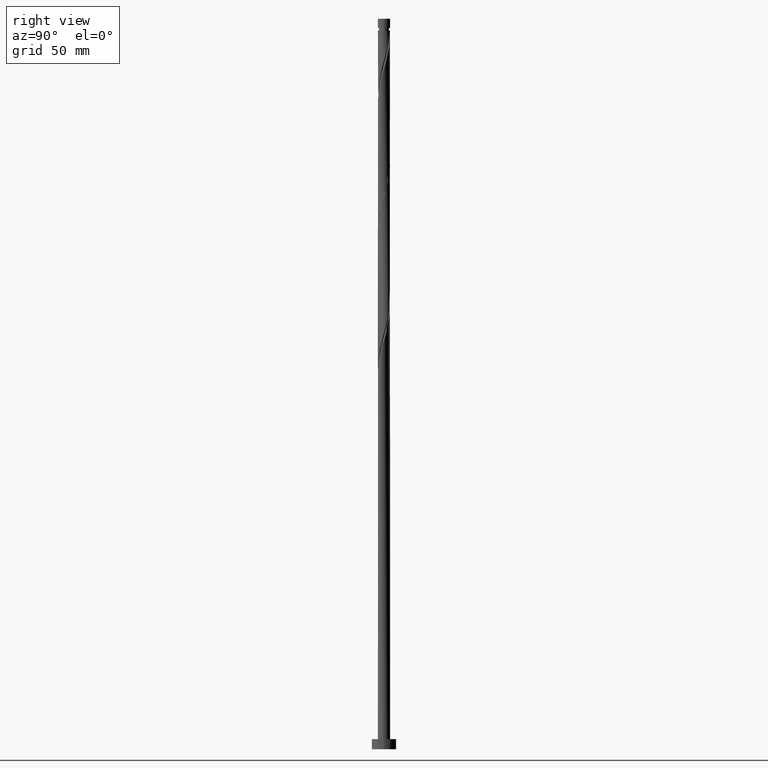
[diagram: clean part render]
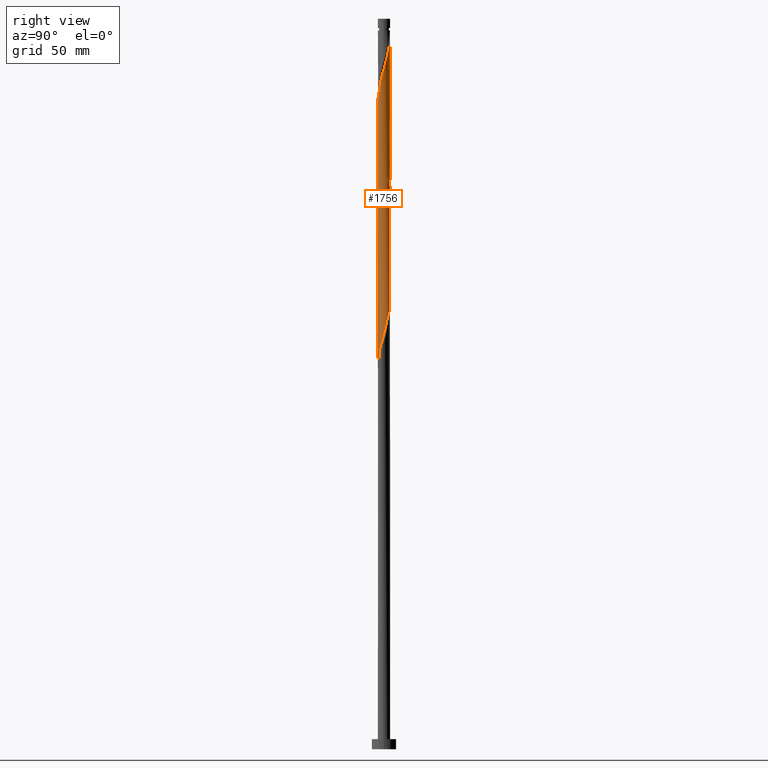
[diagram: same view with one face highlighted and labeled with its STEP entity id]
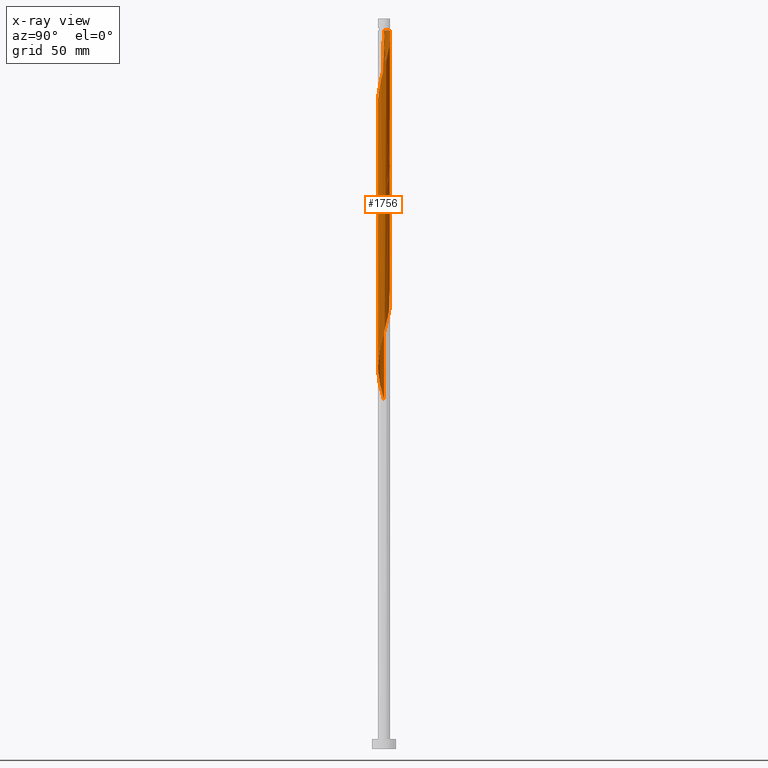
[diagram: x-ray of the same camera — body ghosted, the highlighted face saturated]
A machine part, right view. The second image highlights one B-rep face of the part: STEP entity #1756.
The next image is the same camera in x-ray: the body ghosted, the highlighted face saturated — about 0% of this face is hidden behind the body in this view.
In plain terms, the highlighted cylindrical surface (bore or boss wall) has radius 3 mm, axis along (-0, -0, -1).
Its self-contained STEP definition (entity closure, byte-faithful):
#3 =( BOUNDED_CURVE ( )  B_SPLINE_CURVE ( 2, ( #1465, #1043, #151, #741, #900, #1616, #1327, #924, #1803, #340, #1792, #1658, #474, #934, #1510, #624, #1065, #776, #1638, #1501, #1218, #487, #757, #1341, #764, #889, #1770, #1173, #922, #7, #1747, #611, #1463, #1891, #452, #139, #1196, #583, #441, #158, #29, #1334, #751, #1485, #318, #729, #472, #1041, #1032, #461, #739, #1614, #329, #288, #1051, #1602, #622, #1499, #308, #149, #878, #1451, #1325, #596, #170, #1780, #1206, #1184, #1624, #1757, #1315, #1063, #908, #17, #1636, #183, #1660, #43, #928, #1518, #206, #350, #188, #1525, #214, #789, #491, #1212, #1786, #780, #636, #479, #799 ),
 .UNSPECIFIED., .F., .T. ) 
 B_SPLINE_CURVE_WITH_KNOTS ( ( 3, 2, 2, 2, 2, 2, 2, 2, 2, 2, 2, 2, 2, 2, 2, 2, 2, 2, 2, 2, 2, 2, 2, 2, 2, 2, 2, 2, 2, 2, 2, 2, 2, 2, 2, 2, 2, 2, 2, 2, 2, 2, 2, 2, 2, 2, 3 ),
 ( 0.5545286012773112949, 0.5583333333333333481, 0.5666666666666666519, 0.5749999999999999556, 0.5833333333333333703, 0.5916666666666666741, 0.5999999999999999778, 0.6083333333333332815, 0.6166666666666666963, 0.6250000000000000000, 0.6333333333333333037, 0.6416666666666667185, 0.6500000000000000222, 0.6583333333333333259, 0.6666666666666666297, 0.6750000000000000444, 0.6833333333333333481, 0.6916666666666666519, 0.6999999999999999556, 0.7083333333333333703, 0.7166666666666666741, 0.7249999999999999778, 0.7333333333333332815, 0.7416666666666666963, 0.7500000000000000000, 0.7583333333333333037, 0.7666666666666667185, 0.7750000000000000222, 0.7833333333333333259, 0.7916666666666666297, 0.8000000000000000444, 0.8083333333333333481, 0.8166666666666666519, 0.8249999999999999556, 0.8333333333333333703, 0.8416666666666666741, 0.8499999999999999778, 0.8583333333333332815, 0.8666666666666666963, 0.8750000000000000000, 0.8833333333333333037, 0.8916666666666667185, 0.8999999999999999112, 0.9083333333333332149, 0.9166666666666665186, 0.9250000000000000444, 0.9295286012773114059 ),
 .UNSPECIFIED. ) 
 CURVE ( )  GEOMETRIC_REPRESENTATION_ITEM ( )  RATIONAL_B_SPLINE_CURVE ( ( 0.9066196499552388044, 0.9068171577856514176, 0.9090909090909504719, 0.9041108139711987457, 0.9090909090909504719, 0.9041108139711987457, 0.9090909090909504719, 0.9041108139711987457, 0.9090909090909504719, 0.9041108139711987457, 0.9090909090909504719, 0.9041108139711987457, 0.9090909090909504719, 0.9041108139711987457, 0.9090909090909504719, 0.9041108139711987457, 0.9090909090909504719, 0.9041108139711987457, 0.9090909090909504719, 0.9041108139711987457, 0.9090909090909504719, 0.9041108139711987457, 0.9090909090909504719, 0.9041108139711987457, 0.9090909090909504719, 0.9041108139711987457, 0.9090909090909504719, 0.9041108139711987457, 0.9090909090909504719, 0.9041108139711987457, 0.9090909090909504719, 0.9041108139711987457, 0.9090909090909504719, 0.9041108139711987457, 0.9090909090909504719, 0.9041108139711987457, 0.9090909090909504719, 0.9041108139711987457, 0.9090909090909504719, 0.9041108139711987457, 0.9090909090909504719, 0.9041108139711987457, 0.9090909090909504719, 0.9041108139711987457, 0.9090909090909504719, 0.9041108139711987457, 0.9090909090909504719, 0.9041108139711987457, 0.9090909090909504719, 0.9041108139711987457, 0.9090909090909504719, 0.9041108139711987457, 0.9090909090909504719, 0.9041108139711987457, 0.9090909090909504719, 0.9041108139711987457, 0.9090909090909504719, 0.9041108139711987457, 0.9090909090909504719, 0.9041108139711987457, 0.9090909090909504719, 0.9041108139711987457, 0.9090909090909504719, 0.9041108139711987457, 0.9090909090909504719, 0.9041108139711987457, 0.9090909090909504719, 0.9041108139711987457, 0.9090909090909504719, 0.9041108139711987457, 0.9090909090909504719, 0.9041108139711987457, 0.9090909090909504719, 0.9041108139711987457, 0.9090909090909504719, 0.9041108139711987457, 0.9090909090909504719, 0.9041108139711987457, 0.9090909090909504719, 0.9041108139711987457, 0.9090909090909504719, 0.9041108139711987457, 0.9090909090909504719, 0.9041108139711987457, 0.9090909090909504719, 0.9041108139711987457, 0.9090909090909504719, 0.9041108139711987457, 0.9090909090909504719, 0.9041108139711987457, 0.9090909090909504719, 0.9063845652764976890, 0.9066196499552388044 ) ) 
 REPRESENTATION_ITEM ( '' )  );
#5 = CARTESIAN_POINT ( 'NONE',  ( 2.980586974261068445, -0.3407363920471048191, 332.1849267626111555 ) ) ;
#7 = CARTESIAN_POINT ( 'NONE',  ( -2.944774136347767524, -0.6540087066196486054, 239.9627045403889269 ) ) ;
#9 = ORIENTED_EDGE ( 'NONE', *, *, #1231, .F. ) ;
#14 = CARTESIAN_POINT ( 'NONE',  ( -1.245111594254573406, -2.729413328510883474, 312.1849267626112123 ) ) ;
#17 = CARTESIAN_POINT ( 'NONE',  ( 0.9582386936374892583, -2.860279830445434879, 191.0738156515000412 ) ) ;
#29 = CARTESIAN_POINT ( 'NONE',  ( -1.785379858637177852, 2.410895841875524415, 227.7404823181666984 ) ) ;
#37 = CARTESIAN_POINT ( 'NONE',  ( 2.944774136347770188, -0.6540087066196526022, 331.0738156514998423 ) ) ;
#43 = CARTESIAN_POINT ( 'NONE',  ( -0.2879860105828873640, -3.002746436205628644, 186.6293712070556126 ) ) ;
#50 = CIRCLE ( 'NONE', #1007, 2.999999999999969802 ) ;
#78 = VECTOR ( 'NONE', #1581, 1000.000000000000000 ) ;
#87 = VERTEX_POINT ( 'NONE', #301 ) ;
#129 = VERTEX_POINT ( 'NONE', #1759 ) ;
#139 = CARTESIAN_POINT ( 'NONE',  ( -2.766788993523057627, 1.201790650553047346, 233.2960378737222698 ) ) ;
#147 = LINE ( 'NONE', #191, #238 ) ;
#149 = CARTESIAN_POINT ( 'NONE',  ( 2.944774136347767524, 0.6540087066196478283, 206.6293712070556126 ) ) ;
#151 = CARTESIAN_POINT ( 'NONE',  ( 2.986297077045550363, -0.2864083930844409931, 269.9627045403889838 ) ) ;
#156 = CARTESIAN_POINT ( 'NONE',  ( 2.424175730171095555, -1.795214230025625968, 326.6293712070556126 ) ) ;
#158 = CARTESIAN_POINT ( 'NONE',  ( -2.038775222402704479, 2.223244857174722977, 228.8515934292777843 ) ) ;
#165 = EDGE_CURVE ( 'NONE', #129, #1487, #3, .T. ) ;
#167 = CARTESIAN_POINT ( 'NONE',  ( 2.986297077045553916, 0.2864083930844371628, 334.4071489848333840 ) ) ;
#170 = CARTESIAN_POINT ( 'NONE',  ( 2.861491667719897602, -0.9010357570982442388, 201.0738156515000412 ) ) ;
#172 = EDGE_LOOP ( 'NONE', ( #9, #943, #1553, #1705, #432, #972, #1373, #693 ) ) ;
#177 = CARTESIAN_POINT ( 'NONE',  ( -2.956194341916738466, 0.6002808636434369127, 302.1849267626111555 ) ) ;
#180 = CARTESIAN_POINT ( 'NONE',  ( 2.211065689225172992, -2.027606598413812744, 325.5182600959444699 ) ) ;
#183 = CARTESIAN_POINT ( 'NONE',  ( 0.3426132633519626269, -2.997004880578669539, 188.8515934292778127 ) ) ;
#188 = CARTESIAN_POINT ( 'NONE',  ( -1.741185482790979178, -2.443004935426440927, 181.0738156515000696 ) ) ;
#191 = CARTESIAN_POINT ( 'NONE',  ( -3.000000000000000444, 0.000000000000000000, 358.0000000000000000 ) ) ;
#205 = DIRECTION ( 'NONE',  ( -1.000000000000000000, 0.000000000000000000, 0.000000000000000000 ) ) ;
#206 = CARTESIAN_POINT ( 'NONE',  ( -1.195207115623887928, -2.751632233922627790, 183.2960378737222982 ) ) ;
#214 = CARTESIAN_POINT ( 'NONE',  ( -2.211065689225170772, -2.027606598413810080, 178.8515934292778127 ) ) ;
#226 = CARTESIAN_POINT ( 'NONE',  ( 0.3426132633519643478, 2.997004880578673980, 348.8515934292776706 ) ) ;
#228 = EDGE_CURVE ( 'NONE', #87, #950, #50, .T. ) ;
#234 = CARTESIAN_POINT ( 'NONE',  ( 2.980586974261064892, 0.3407363920471029317, 272.1849267626112123 ) ) ;
#238 = VECTOR ( 'NONE', #1182, 1000.000000000000000 ) ;
#273 = CARTESIAN_POINT ( 'NONE',  ( 2.744447700168707538, 1.251970017003500191, 275.5182600959444699 ) ) ;
#277 = EDGE_CURVE ( 'NONE', #406, #129, #1188, .T. ) ;
#288 = CARTESIAN_POINT ( 'NONE',  ( 1.997955648279249319, 2.259998966801997078, 213.2960378737222413 ) ) ;
#292 = CARTESIAN_POINT ( 'NONE',  ( -1.531984494871650782, 2.598546826576327184, 293.2960378737222982 ) ) ;
#295 = DIRECTION ( 'NONE',  ( -0.000000000000000000, -0.000000000000000000, -1.000000000000000000 ) ) ;
#301 = CARTESIAN_POINT ( 'NONE',  ( -2.999999999999969802, 0.000000000000000000, 352.1849267626111555 ) ) ;
#308 = CARTESIAN_POINT ( 'NONE',  ( 2.844610918258238197, 0.9529893618115726772, 207.7404823181667837 ) ) ;
#312 = CARTESIAN_POINT ( 'NONE',  ( -1.785379858637177852, 2.410895841875524415, 294.4071489848333840 ) ) ;
#318 = CARTESIAN_POINT ( 'NONE',  ( -0.6504259784947262757, 2.928642355512051765, 223.2960378737222982 ) ) ;
#326 = CARTESIAN_POINT ( 'NONE',  ( -2.956194341916741575, -0.6002808636434369127, 302.1849267626110986 ) ) ;
#329 = CARTESIAN_POINT ( 'NONE',  ( 1.741185482790980510, 2.443004935426440483, 214.4071489848334409 ) ) ;
#336 = CARTESIAN_POINT ( 'NONE',  ( -2.456461689585823116, -1.750776419202129119, 306.6293712070555557 ) ) ;
#340 = CARTESIAN_POINT ( 'NONE',  ( 2.038775222402704035, -2.223244857174722977, 262.1849267626112123 ) ) ;
#345 = CARTESIAN_POINT ( 'NONE',  ( 2.766788993523061624, 1.201790650553045792, 337.7404823181666416 ) ) ;
#350 = CARTESIAN_POINT ( 'NONE',  ( -1.484415317302709481, -2.626010904050885220, 182.1849267626110986 ) ) ;
#359 = CYLINDRICAL_SURFACE ( 'NONE', #1607, 3.000000000000000444 ) ;
#406 = VERTEX_POINT ( 'NONE', #1171 ) ;
#414 = CARTESIAN_POINT ( 'NONE',  ( 2.584311715169901991, 1.523592123514560193, 276.6293712070556126 ) ) ;
#417 = LINE ( 'NONE', #1140, #1605 ) ;
#432 = ORIENTED_EDGE ( 'NONE', *, *, #165, .F. ) ;
#435 = CARTESIAN_POINT ( 'NONE',  ( -2.038775222402704479, 2.223244857174722977, 295.5182600959444130 ) ) ;
#441 = CARTESIAN_POINT ( 'NONE',  ( -2.247618455994262465, 1.987010638188425382, 229.9627045403889554 ) ) ;
#448 = CARTESIAN_POINT ( 'NONE',  ( -3.000000000000003553, -0.1435319978602548896, 300.5680320446537621 ) ) ;
#452 = CARTESIAN_POINT ( 'NONE',  ( -2.861491667719897602, 0.9010357570982423514, 234.4071489848334409 ) ) ;
#459 = CARTESIAN_POINT ( 'NONE',  ( 0.9582386936374930331, 2.860279830445437099, 346.6293712070556126 ) ) ;
#461 = CARTESIAN_POINT ( 'NONE',  ( 0.9059989139450661533, 2.877253563794370805, 217.7404823181666416 ) ) ;
#472 = CARTESIAN_POINT ( 'NONE',  ( -0.02731362638453826638, 2.999875658392149536, 221.0738156515000696 ) ) ;
#474 = CARTESIAN_POINT ( 'NONE',  ( 1.245111594254570520, -2.729413328510881254, 258.8515934292778979 ) ) ;
#476 = CARTESIAN_POINT ( 'NONE',  ( 2.944774136347767524, 0.6540087066196478283, 273.2960378737222413 ) ) ;
#479 = CARTESIAN_POINT ( 'NONE',  ( -3.000000000000000888, -0.1709212123392988281, 171.5826279821839080 ) ) ;
#483 = CARTESIAN_POINT ( 'NONE',  ( 1.195207115623886596, -2.751632233922632231, 321.0738156515001265 ) ) ;
#487 = CARTESIAN_POINT ( 'NONE',  ( -1.484415317302709481, -2.626010904050885220, 248.8515934292778127 ) ) ;
#491 = CARTESIAN_POINT ( 'NONE',  ( -2.584311715169900214, -1.523592123514560637, 176.6293712070556410 ) ) ;
#495 = CARTESIAN_POINT ( 'NONE',  ( 1.741185482790979400, -2.443004935426444924, 323.2960378737222413 ) ) ;
#545 = CARTESIAN_POINT ( 'NONE',  ( 3.000000000000000444, 3.673940397442060361E-16, 358.0000000000000000 ) ) ;
#559 = CARTESIAN_POINT ( 'NONE',  ( 2.211065689225171660, 2.027606598413810080, 278.8515934292778411 ) ) ;
#583 = CARTESIAN_POINT ( 'NONE',  ( -2.456461689585820451, 1.750776419202128231, 231.0738156515000412 ) ) ;
#588 = CARTESIAN_POINT ( 'NONE',  ( 1.484415317302709925, 2.626010904050884776, 282.1849267626110986 ) ) ;
#591 = DIRECTION ( 'NONE',  ( -1.000000000000000000, 0.000000000000000000, 0.000000000000000000 ) ) ;
#593 = CARTESIAN_POINT ( 'NONE',  ( 2.247618455994266462, 1.987010638188425382, 341.0738156514999559 ) ) ;
#596 = CARTESIAN_POINT ( 'NONE',  ( 2.956194341916738466, -0.6002808636434372458, 202.1849267626112123 ) ) ;
#600 = CARTESIAN_POINT ( 'NONE',  ( -0.9582386936374900355, 2.860279830445434879, 291.0738156515000128 ) ) ;
#606 = CARTESIAN_POINT ( 'NONE',  ( 2.611625341554442148, 1.476283534877588011, 338.8515934292778979 ) ) ;
#611 = CARTESIAN_POINT ( 'NONE',  ( -3.016399812174360928, -0.02746407747455732046, 237.7404823181666700 ) ) ;
#622 = CARTESIAN_POINT ( 'NONE',  ( 2.584311715169901991, 1.523592123514560193, 209.9627045403889269 ) ) ;
#624 = CARTESIAN_POINT ( 'NONE',  ( 0.3426132633519626269, -2.997004880578669539, 255.5182600959444130 ) ) ;
#636 = CARTESIAN_POINT ( 'NONE',  ( -2.980586974261064892, -0.3407363920471032648, 172.1849267626112123 ) ) ;
#639 = CARTESIAN_POINT ( 'NONE',  ( -2.986297077045553916, -0.2864083930844387171, 301.0738156515001265 ) ) ;
#692 = CARTESIAN_POINT ( 'NONE',  ( 3.000000000000000000, 0.1709212123393018257, 271.5826279821839080 ) ) ;
#693 = ORIENTED_EDGE ( 'NONE', *, *, #277, .F. ) ;
#719 = VERTEX_POINT ( 'NONE', #1081 ) ;
#722 = CARTESIAN_POINT ( 'NONE',  ( -2.611625341554439483, 1.476283534877587122, 298.8515934292778411 ) ) ;
#729 = CARTESIAN_POINT ( 'NONE',  ( -0.3426132633519628490, 2.997004880578669539, 222.1849267626111271 ) ) ;
#733 = EDGE_CURVE ( 'NONE', #719, #1487, #147, .T. ) ;
#739 = CARTESIAN_POINT ( 'NONE',  ( 1.195207115623888372, 2.751632233922627790, 216.6293712070555841 ) ) ;
#741 = CARTESIAN_POINT ( 'NONE',  ( 2.956194341916738466, -0.6002808636434372458, 268.8515934292778411 ) ) ;
#743 = CARTESIAN_POINT ( 'NONE',  ( 1.195207115623888372, 2.751632233922627790, 283.2960378737222413 ) ) ;
#749 = CARTESIAN_POINT ( 'NONE',  ( -2.861491667719901599, -0.9010357570982421294, 303.2960378737223550 ) ) ;
#751 = CARTESIAN_POINT ( 'NONE',  ( -1.245111594254570742, 2.729413328510881254, 225.5182600959445267 ) ) ;
#757 = CARTESIAN_POINT ( 'NONE',  ( -1.741185482790979178, -2.443004935426440927, 247.7404823181667268 ) ) ;
#761 = CARTESIAN_POINT ( 'NONE',  ( 2.038775222402707588, 2.223244857174724309, 342.1849267626110986 ) ) ;
#764 = CARTESIAN_POINT ( 'NONE',  ( -2.211065689225170772, -2.027606598413810080, 245.5182600959445267 ) ) ;
#772 = CARTESIAN_POINT ( 'NONE',  ( -1.785379858637180961, -2.410895841875526635, 309.9627045403889269 ) ) ;
#775 = EDGE_CURVE ( 'NONE', #719, #950, #1004, .T. ) ;
#776 = CARTESIAN_POINT ( 'NONE',  ( -0.2879860105828873640, -3.002746436205628644, 253.2960378737222698 ) ) ;
#780 = CARTESIAN_POINT ( 'NONE',  ( -2.944774136347767524, -0.6540087066196486054, 173.2960378737222413 ) ) ;
#783 = CARTESIAN_POINT ( 'NONE',  ( 2.861491667719901599, 0.9010357570982413522, 336.6293712070556694 ) ) ;
#789 = CARTESIAN_POINT ( 'NONE',  ( -2.424175730171094667, -1.795214230025622415, 177.7404823181666700 ) ) ;
#799 = CARTESIAN_POINT ( 'NONE',  ( -3.000000000000001332, -3.497929208435612865E-15, 170.9770366727993576 ) ) ;
#802 = CARTESIAN_POINT ( 'NONE',  ( 0.6504259784947299394, 2.928642355512054873, 347.7404823181667552 ) ) ;
#817 = CARTESIAN_POINT ( 'NONE',  ( 0.000000000000000000, 0.000000000000000000, 358.0000000000000000 ) ) ;
#838 = DIRECTION ( 'NONE',  ( -0.000000000000000000, -0.000000000000000000, -1.000000000000000000 ) ) ;
#864 = CARTESIAN_POINT ( 'NONE',  ( 2.844610918258238197, 0.9529893618115726772, 274.4071489848333840 ) ) ;
#872 = CARTESIAN_POINT ( 'NONE',  ( -2.861491667719897602, 0.9010357570982423514, 301.0738156515001265 ) ) ;
#878 = CARTESIAN_POINT ( 'NONE',  ( 2.980586974261064892, 0.3407363920471029317, 205.5182600959444983 ) ) ;
#889 = CARTESIAN_POINT ( 'NONE',  ( -2.424175730171094667, -1.795214230025622415, 244.4071489848333556 ) ) ;
#893 = CARTESIAN_POINT ( 'NONE',  ( 0.9059989139450661533, 2.877253563794370805, 284.4071489848334409 ) ) ;
#900 = CARTESIAN_POINT ( 'NONE',  ( 2.861491667719897602, -0.9010357570982442388, 267.7404823181666984 ) ) ;
#906 = CARTESIAN_POINT ( 'NONE',  ( -2.247618455994265574, -1.987010638188425826, 307.7404823181666984 ) ) ;
#908 = CARTESIAN_POINT ( 'NONE',  ( 1.245111594254570520, -2.729413328510881254, 192.1849267626111555 ) ) ;
#914 = CARTESIAN_POINT ( 'NONE',  ( -3.000000000000000888, 0.1435319978602487834, 303.8018214805687194 ) ) ;
#919 = CARTESIAN_POINT ( 'NONE',  ( -2.611625341554442148, -1.476283534877588455, 305.5182600959443562 ) ) ;
#922 = CARTESIAN_POINT ( 'NONE',  ( -2.844610918258237753, -0.9529893618115742315, 241.0738156515000981 ) ) ;
#924 = CARTESIAN_POINT ( 'NONE',  ( 2.456461689585819119, -1.750776419202129341, 264.4071489848333840 ) ) ;
#928 = CARTESIAN_POINT ( 'NONE',  ( -0.5969924622639751766, -2.940000000000000835, 185.5182600959444699 ) ) ;
#931 = CARTESIAN_POINT ( 'NONE',  ( 0.9059989139450632667, -2.877253563794376578, 319.9627045403888133 ) ) ;
#934 = CARTESIAN_POINT ( 'NONE',  ( 0.9582386936374892583, -2.860279830445434879, 257.7404823181666984 ) ) ;
#940 = CARTESIAN_POINT ( 'NONE',  ( 2.456461689585824448, 1.750776419202128231, 339.9627045403889838 ) ) ;
#943 = ORIENTED_EDGE ( 'NONE', *, *, #228, .T. ) ;
#950 = VERTEX_POINT ( 'NONE', #1116 ) ;
#972 = ORIENTED_EDGE ( 'NONE', *, *, #1208, .F. ) ;
#989 = VERTEX_POINT ( 'NONE', #1267 ) ;
#991 = DIRECTION ( 'NONE',  ( -0.000000000000000000, -0.000000000000000000, -1.000000000000000000 ) ) ;
#1004 =( BOUNDED_CURVE ( )  B_SPLINE_CURVE ( 2, ( #1061, #448, #639, #326, #749, #1215, #919, #336, #906, #1225, #772, #1496, #14, #1323, #1483, #1800, #1049, #1039, #1612, #931, #483, #1507, #495, #1789, #180, #156, #1332, #1073, #1354, #37, #5, #1655, #167, #1647, #783, #345, #606, #940, #593, #761, #1754, #1194, #1767, #459, #802, #226, #1663, #1124, #1097 ),
 .UNSPECIFIED., .F., .T. ) 
 B_SPLINE_CURVE_WITH_KNOTS ( ( 3, 2, 2, 2, 2, 2, 2, 2, 2, 2, 2, 2, 2, 2, 2, 2, 2, 2, 2, 2, 2, 2, 2, 2, 3 ),
 ( 0.5545286012773116280, 0.5583333333333333481, 0.5666666666666666519, 0.5749999999999999556, 0.5833333333333332593, 0.5916666666666666741, 0.5999999999999999778, 0.6083333333333333925, 0.6166666666666666963, 0.6250000000000000000, 0.6333333333333333037, 0.6416666666666666075, 0.6500000000000000222, 0.6583333333333333259, 0.6666666666666667407, 0.6750000000000000444, 0.6833333333333333481, 0.6916666666666666519, 0.6999999999999999556, 0.7083333333333332593, 0.7166666666666666741, 0.7249999999999999778, 0.7333333333333333925, 0.7416666666666666963, 0.7500000000000000000 ),
 .UNSPECIFIED. ) 
 CURVE ( )  GEOMETRIC_REPRESENTATION_ITEM ( )  RATIONAL_B_SPLINE_CURVE ( ( 0.9066196499552440224, 0.9068171577856568577, 0.9090909090909556900, 0.9041108139712038527, 0.9090909090909556900, 0.9041108139712038527, 0.9090909090909556900, 0.9041108139712038527, 0.9090909090909556900, 0.9041108139712038527, 0.9090909090909556900, 0.9041108139712038527, 0.9090909090909556900, 0.9041108139712038527, 0.9090909090909556900, 0.9041108139712038527, 0.9090909090909556900, 0.9041108139712038527, 0.9090909090909556900, 0.9041108139712038527, 0.9090909090909556900, 0.9041108139712038527, 0.9090909090909556900, 0.9041108139712038527, 0.9090909090909556900, 0.9041108139712038527, 0.9090909090909556900, 0.9041108139712038527, 0.9090909090909556900, 0.9041108139712038527, 0.9090909090909556900, 0.9041108139712038527, 0.9090909090909556900, 0.9041108139712038527, 0.9090909090909556900, 0.9041108139712038527, 0.9090909090909556900, 0.9041108139712038527, 0.9090909090909556900, 0.9041108139712038527, 0.9090909090909556900, 0.9041108139712038527, 0.9090909090909556900, 0.9041108139712038527, 0.9090909090909556900, 0.9041108139712038527, 0.9090909090909556900, 0.9041108139712038527, 0.9090909090909556900 ) ) 
 REPRESENTATION_ITEM ( '' )  );
#1007 = AXIS2_PLACEMENT_3D ( 'NONE', #1238, #295, #591 ) ;
#1032 = CARTESIAN_POINT ( 'NONE',  ( 0.5969924622639753986, 2.940000000000000835, 218.8515934292778127 ) ) ;
#1039 = CARTESIAN_POINT ( 'NONE',  ( 0.2879860105828851990, -3.002746436205631753, 317.7404823181666416 ) ) ;
#1041 = CARTESIAN_POINT ( 'NONE',  ( 0.2879860105828859762, 3.002746436205628644, 219.9627045403889554 ) ) ;
#1043 = CARTESIAN_POINT ( 'NONE',  ( 3.000000000000001332, -0.1435319978602450641, 270.4684881472353482 ) ) ;
#1049 = CARTESIAN_POINT ( 'NONE',  ( -0.02731362638454002886, -2.999875658392152200, 316.6293712070556126 ) ) ;
#1051 = CARTESIAN_POINT ( 'NONE',  ( 2.211065689225171660, 2.027606598413810080, 212.1849267626111271 ) ) ;
#1058 = CARTESIAN_POINT ( 'NONE',  ( -3.000000000000001332, -1.584532034590491222E-15, 304.3103700061327004 ) ) ;
#1061 = CARTESIAN_POINT ( 'NONE',  ( -3.000000000000004441, -1.375254218701173101E-15, 300.0594835190896674 ) ) ;
#1063 = CARTESIAN_POINT ( 'NONE',  ( 1.531984494871650337, -2.598546826576327184, 193.2960378737222982 ) ) ;
#1065 = CARTESIAN_POINT ( 'NONE',  ( 0.02731362638453752739, -2.999875658392149091, 254.4071489848334124 ) ) ;
#1073 = CARTESIAN_POINT ( 'NONE',  ( 2.744447700168709758, -1.251970017003502855, 328.8515934292778411 ) ) ;
#1081 = CARTESIAN_POINT ( 'NONE',  ( -3.000000000000004441, -1.375254218701173101E-15, 300.0594835190896674 ) ) ;
#1097 = CARTESIAN_POINT ( 'NONE',  ( -0.5969924622640412348, 2.940000000000874358, 352.1849267626110418 ) ) ;
#1109 = CARTESIAN_POINT ( 'NONE',  ( -3.000000000000001332, -3.497929208435612865E-15, 170.9770366727993576 ) ) ;
#1116 = CARTESIAN_POINT ( 'NONE',  ( -0.5969924622640412348, 2.940000000000874358, 352.1849267626110418 ) ) ;
#1124 = CARTESIAN_POINT ( 'NONE',  ( -0.2879860105828834782, 3.002746436205632197, 351.0738156514999559 ) ) ;
#1140 = CARTESIAN_POINT ( 'NONE',  ( -3.000000000000000444, 0.000000000000000000, 358.0000000000000000 ) ) ;
#1146 = CARTESIAN_POINT ( 'NONE',  ( 2.424175730171095555, 1.795214230025620639, 277.7404823181666984 ) ) ;
#1169 = LINE ( 'NONE', #545, #78 ) ;
#1171 = CARTESIAN_POINT ( 'NONE',  ( -3.000000000000001332, -1.584532034590491222E-15, 304.3103700061327004 ) ) ;
#1173 = CARTESIAN_POINT ( 'NONE',  ( -2.744447700168706650, -1.251970017003500191, 242.1849267626112123 ) ) ;
#1177 = CARTESIAN_POINT ( 'NONE',  ( -2.766788993523057627, 1.201790650553047346, 299.9627045403888701 ) ) ;
#1182 = DIRECTION ( 'NONE',  ( -0.000000000000000000, -0.000000000000000000, -1.000000000000000000 ) ) ;
#1184 = CARTESIAN_POINT ( 'NONE',  ( 2.456461689585819119, -1.750776419202129341, 197.7404823181667268 ) ) ;
#1188 =( BOUNDED_CURVE ( )  B_SPLINE_CURVE ( 2, ( #1058, #914, #1493, #177, #872, #1177, #722, #1740, #1189, #435, #312, #292, #1437, #600, #1608, #1467, #1895, #1319, #1579, #893, #743, #588, #1477, #1866, #559, #1146, #414, #273, #864, #476, #234, #692, #1281 ),
 .UNSPECIFIED., .F., .T. ) 
 B_SPLINE_CURVE_WITH_KNOTS ( ( 3, 2, 2, 2, 2, 2, 2, 2, 2, 2, 2, 2, 2, 2, 2, 2, 3 ),
 ( 0.4295286012773114059, 0.4333333333333333481, 0.4416666666666666519, 0.4500000000000000111, 0.4583333333333333148, 0.4666666666666666741, 0.4749999999999999778, 0.4833333333333333370, 0.4916666666666666408, 0.5000000000000000000, 0.5083333333333333037, 0.5166666666666667185, 0.5250000000000000222, 0.5333333333333333259, 0.5416666666666666297, 0.5500000000000000444, 0.5545286012773112949 ),
 .UNSPECIFIED. ) 
 CURVE ( )  GEOMETRIC_REPRESENTATION_ITEM ( )  RATIONAL_B_SPLINE_CURVE ( ( 0.9066196499552388044, 0.9068171577856515286, 0.9090909090909504719, 0.9041108139711987457, 0.9090909090909504719, 0.9041108139711987457, 0.9090909090909504719, 0.9041108139711987457, 0.9090909090909504719, 0.9041108139711987457, 0.9090909090909504719, 0.9041108139711987457, 0.9090909090909504719, 0.9041108139711987457, 0.9090909090909504719, 0.9041108139711987457, 0.9090909090909504719, 0.9041108139711987457, 0.9090909090909504719, 0.9041108139711987457, 0.9090909090909504719, 0.9041108139711987457, 0.9090909090909504719, 0.9041108139711987457, 0.9090909090909504719, 0.9041108139711987457, 0.9090909090909504719, 0.9041108139711987457, 0.9090909090909504719, 0.9041108139711987457, 0.9090909090909504719, 0.9063845652764976890, 0.9066196499552388044 ) ) 
 REPRESENTATION_ITEM ( '' )  );
#1189 = CARTESIAN_POINT ( 'NONE',  ( -2.247618455994262465, 1.987010638188425382, 296.6293712070554989 ) ) ;
#1194 = CARTESIAN_POINT ( 'NONE',  ( 1.531984494871655222, 2.598546826576328517, 344.4071489848333840 ) ) ;
#1196 = CARTESIAN_POINT ( 'NONE',  ( -2.611625341554439483, 1.476283534877587122, 232.1849267626111839 ) ) ;
#1206 = CARTESIAN_POINT ( 'NONE',  ( 2.611625341554439483, -1.476283534877587345, 198.8515934292778695 ) ) ;
#1208 = EDGE_CURVE ( 'NONE', #989, #129, #1169, .T. ) ;
#1212 = CARTESIAN_POINT ( 'NONE',  ( -2.744447700168706650, -1.251970017003500191, 175.5182600959445267 ) ) ;
#1215 = CARTESIAN_POINT ( 'NONE',  ( -2.766788993523061180, -1.201790650553047346, 304.4071489848332703 ) ) ;
#1218 = CARTESIAN_POINT ( 'NONE',  ( -1.195207115623887928, -2.751632233922627790, 249.9627045403889554 ) ) ;
#1225 = CARTESIAN_POINT ( 'NONE',  ( -2.038775222402706699, -2.223244857174724309, 308.8515934292777274 ) ) ;
#1231 = EDGE_CURVE ( 'NONE', #87, #406, #417, .T. ) ;
#1238 = CARTESIAN_POINT ( 'NONE',  ( 0.000000000000000000, 0.000000000000000000, 352.1849267626111555 ) ) ;
#1265 = FACE_OUTER_BOUND ( 'NONE', #172, .T. ) ;
#1267 = CARTESIAN_POINT ( 'NONE',  ( 3.000000000000000444, 3.673940397442060361E-16, 352.1849267626111555 ) ) ;
#1281 = CARTESIAN_POINT ( 'NONE',  ( 3.000000000000000888, 2.212365482258421327E-15, 270.9770366727993860 ) ) ;
#1315 = CARTESIAN_POINT ( 'NONE',  ( 1.785379858637177186, -2.410895841875524415, 194.4071489848334124 ) ) ;
#1319 = CARTESIAN_POINT ( 'NONE',  ( 0.2879860105828859762, 3.002746436205628644, 286.6293712070554989 ) ) ;
#1323 = CARTESIAN_POINT ( 'NONE',  ( -0.9582386936374922559, -2.860279830445437099, 313.2960378737222982 ) ) ;
#1325 = CARTESIAN_POINT ( 'NONE',  ( 2.986297077045550363, -0.2864083930844409931, 203.2960378737223266 ) ) ;
#1327 = CARTESIAN_POINT ( 'NONE',  ( 2.611625341554439483, -1.476283534877587345, 265.5182600959445267 ) ) ;
#1332 = CARTESIAN_POINT ( 'NONE',  ( 2.584311715169902435, -1.523592123514564411, 327.7404823181666984 ) ) ;
#1334 = CARTESIAN_POINT ( 'NONE',  ( -1.531984494871650782, 2.598546826576327184, 226.6293712070556126 ) ) ;
#1341 = CARTESIAN_POINT ( 'NONE',  ( -1.997955648279248875, -2.259998966801997522, 246.6293712070555557 ) ) ;
#1354 = CARTESIAN_POINT ( 'NONE',  ( 2.844610918258240417, -0.9529893618115777842, 329.9627045403888701 ) ) ;
#1373 = ORIENTED_EDGE ( 'NONE', *, *, #1208, .T. ) ;
#1437 = CARTESIAN_POINT ( 'NONE',  ( -1.245111594254570742, 2.729413328510881254, 292.1849267626112123 ) ) ;
#1451 = CARTESIAN_POINT ( 'NONE',  ( 3.016399812174360928, 0.02746407747455551288, 204.4071489848333556 ) ) ;
#1463 = CARTESIAN_POINT ( 'NONE',  ( -2.986297077045550363, 0.2864083930844398829, 236.6293712070556410 ) ) ;
#1465 = CARTESIAN_POINT ( 'NONE',  ( 3.000000000000000888, 2.212365482258421327E-15, 270.9770366727993860 ) ) ;
#1467 = CARTESIAN_POINT ( 'NONE',  ( -0.3426132633519628490, 2.997004880578669539, 288.8515934292777274 ) ) ;
#1477 = CARTESIAN_POINT ( 'NONE',  ( 1.741185482790980510, 2.443004935426440483, 281.0738156515000696 ) ) ;
#1483 = CARTESIAN_POINT ( 'NONE',  ( -0.6504259784947283851, -2.928642355512054873, 314.4071489848333840 ) ) ;
#1485 = CARTESIAN_POINT ( 'NONE',  ( -0.9582386936374900355, 2.860279830445434879, 224.4071489848333556 ) ) ;
#1487 = VERTEX_POINT ( 'NONE', #1109 ) ;
#1493 = CARTESIAN_POINT ( 'NONE',  ( -2.986297077045550363, 0.2864083930844398829, 303.2960378737224119 ) ) ;
#1496 = CARTESIAN_POINT ( 'NONE',  ( -1.531984494871653890, -2.598546826576329849, 311.0738156515000696 ) ) ;
#1499 = CARTESIAN_POINT ( 'NONE',  ( 2.744447700168707538, 1.251970017003500191, 208.8515934292778411 ) ) ;
#1501 = CARTESIAN_POINT ( 'NONE',  ( -0.9059989139450644879, -2.877253563794371249, 251.0738156515000412 ) ) ;
#1507 = CARTESIAN_POINT ( 'NONE',  ( 1.484415317302710813, -2.626010904050888328, 322.1849267626110418 ) ) ;
#1510 = CARTESIAN_POINT ( 'NONE',  ( 0.6504259784947254985, -2.928642355512052653, 256.6293712070556126 ) ) ;
#1518 = CARTESIAN_POINT ( 'NONE',  ( -0.9059989139450644879, -2.877253563794371249, 184.4071489848333840 ) ) ;
#1525 = CARTESIAN_POINT ( 'NONE',  ( -1.997955648279248875, -2.259998966801997522, 179.9627045403889554 ) ) ;
#1553 = ORIENTED_EDGE ( 'NONE', *, *, #775, .F. ) ;
#1579 = CARTESIAN_POINT ( 'NONE',  ( 0.5969924622639753986, 2.940000000000000835, 285.5182600959444130 ) ) ;
#1581 = DIRECTION ( 'NONE',  ( -0.000000000000000000, -0.000000000000000000, -1.000000000000000000 ) ) ;
#1602 = CARTESIAN_POINT ( 'NONE',  ( 2.424175730171095555, 1.795214230025620639, 211.0738156515000128 ) ) ;
#1605 = VECTOR ( 'NONE', #991, 1000.000000000000000 ) ;
#1607 = AXIS2_PLACEMENT_3D ( 'NONE', #817, #838, #205 ) ;
#1608 = CARTESIAN_POINT ( 'NONE',  ( -0.6504259784947262757, 2.928642355512051765, 289.9627045403890406 ) ) ;
#1612 = CARTESIAN_POINT ( 'NONE',  ( 0.5969924622639748435, -2.940000000000003944, 318.8515934292778411 ) ) ;
#1614 = CARTESIAN_POINT ( 'NONE',  ( 1.484415317302709925, 2.626010904050884776, 215.5182600959444983 ) ) ;
#1616 = CARTESIAN_POINT ( 'NONE',  ( 2.766788993523057183, -1.201790650553048234, 266.6293712070556694 ) ) ;
#1624 = CARTESIAN_POINT ( 'NONE',  ( 2.247618455994262021, -1.987010638188426048, 196.6293712070555841 ) ) ;
#1636 = CARTESIAN_POINT ( 'NONE',  ( 0.6504259784947254985, -2.928642355512052653, 189.9627045403889554 ) ) ;
#1638 = CARTESIAN_POINT ( 'NONE',  ( -0.5969924622639751766, -2.940000000000000835, 252.1849267626112407 ) ) ;
#1647 = CARTESIAN_POINT ( 'NONE',  ( 2.956194341916741575, 0.6002808636434365797, 335.5182600959444130 ) ) ;
#1655 = CARTESIAN_POINT ( 'NONE',  ( 3.016399812174364481, -0.02746407747455961376, 333.2960378737223550 ) ) ;
#1658 = CARTESIAN_POINT ( 'NONE',  ( 1.531984494871650337, -2.598546826576327184, 259.9627045403889269 ) ) ;
#1660 = CARTESIAN_POINT ( 'NONE',  ( 0.02731362638453752739, -2.999875658392149091, 187.7404823181667268 ) ) ;
#1663 = CARTESIAN_POINT ( 'NONE',  ( 0.02731362638454045560, 2.999875658392152200, 349.9627045403888701 ) ) ;
#1705 = ORIENTED_EDGE ( 'NONE', *, *, #733, .T. ) ;
#1740 = CARTESIAN_POINT ( 'NONE',  ( -2.456461689585820451, 1.750776419202128231, 297.7404823181666984 ) ) ;
#1747 = CARTESIAN_POINT ( 'NONE',  ( -2.980586974261064892, -0.3407363920471032648, 238.8515934292778411 ) ) ;
#1754 = CARTESIAN_POINT ( 'NONE',  ( 1.785379858637181405, 2.410895841875525747, 343.2960378737222982 ) ) ;
#1756 = ADVANCED_FACE ( 'NONE', ( #1265 ), #359, .T. ) ;
#1757 = CARTESIAN_POINT ( 'NONE',  ( 2.038775222402704035, -2.223244857174722977, 195.5182600959444414 ) ) ;
#1759 = CARTESIAN_POINT ( 'NONE',  ( 3.000000000000000888, 2.212365482258421721E-15, 270.9770366727993860 ) ) ;
#1767 = CARTESIAN_POINT ( 'NONE',  ( 1.245111594254573406, 2.729413328510883474, 345.5182600959444699 ) ) ;
#1770 = CARTESIAN_POINT ( 'NONE',  ( -2.584311715169900214, -1.523592123514560637, 243.2960378737222698 ) ) ;
#1780 = CARTESIAN_POINT ( 'NONE',  ( 2.766788993523057183, -1.201790650553048234, 199.9627045403889269 ) ) ;
#1786 = CARTESIAN_POINT ( 'NONE',  ( -2.844610918258237753, -0.9529893618115742315, 174.4071489848333556 ) ) ;
#1789 = CARTESIAN_POINT ( 'NONE',  ( 1.997955648279248875, -2.259998966802001075, 324.4071489848333840 ) ) ;
#1792 = CARTESIAN_POINT ( 'NONE',  ( 1.785379858637177186, -2.410895841875524415, 261.0738156515000696 ) ) ;
#1800 = CARTESIAN_POINT ( 'NONE',  ( -0.3426132633519640147, -2.997004880578673980, 315.5182600959444130 ) ) ;
#1803 = CARTESIAN_POINT ( 'NONE',  ( 2.247618455994262021, -1.987010638188426048, 263.2960378737222413 ) ) ;
#1866 = CARTESIAN_POINT ( 'NONE',  ( 1.997955648279249319, 2.259998966801997078, 279.9627045403889838 ) ) ;
#1891 = CARTESIAN_POINT ( 'NONE',  ( -2.956194341916738466, 0.6002808636434369127, 235.5182600959444983 ) ) ;
#1895 = CARTESIAN_POINT ( 'NONE',  ( -0.02731362638453826638, 2.999875658392149536, 287.7404823181666984 ) ) ;